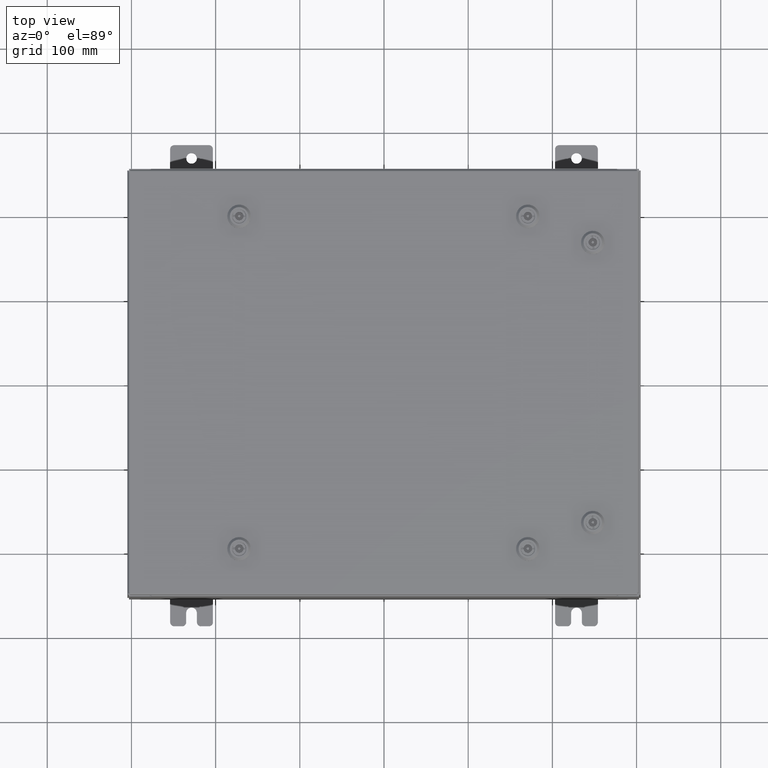
[diagram: clean part render]
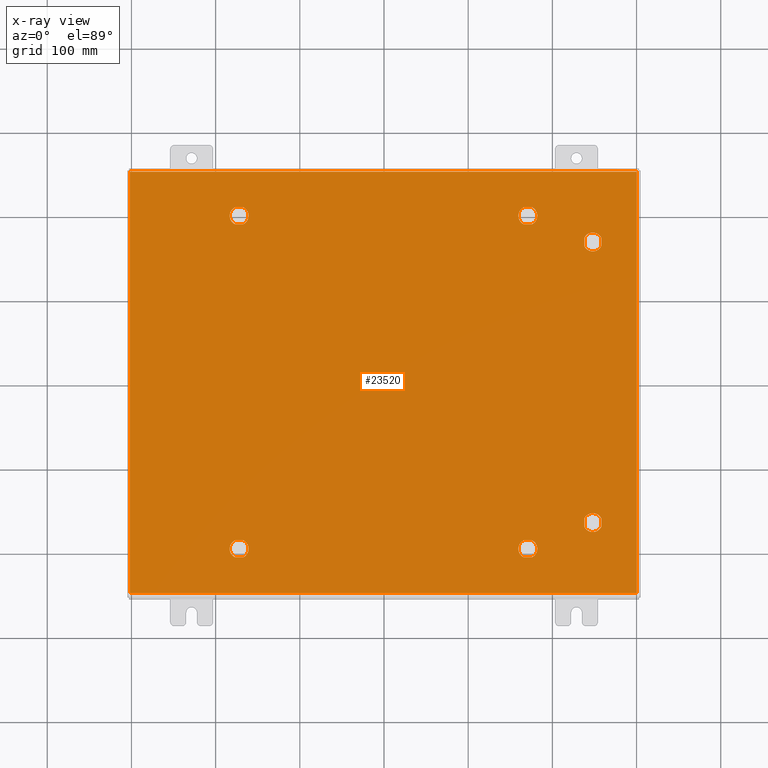
[diagram: x-ray — body ghosted, one internal face saturated and labeled with its STEP entity id]
A machine part, top view, then the same camera in x-ray: the body is ghosted and one INTERNAL B-rep face — a face not visible from any outside direction — is saturated and labeled: STEP entity #23520.
In plain terms, the highlighted planar face has unit normal (0, 0, -1).
Its self-contained STEP definition (entity closure, byte-faithful):
#188 = DIRECTION ( 'NONE',  ( 1.000000000000000000, -0.0000000000000000000, -0.0000000000000000000 ) ) ;
#236 = ORIENTED_EDGE ( 'NONE', *, *, #1452, .T. ) ;
#302 = DIRECTION ( 'NONE',  ( -1.000000000000000000, 1.369674334534794100E-014, 0.0000000000000000000 ) ) ;
#315 = VERTEX_POINT ( 'NONE', #58190 ) ;
#403 = ORIENTED_EDGE ( 'NONE', *, *, #55413, .T. ) ;
#440 = VERTEX_POINT ( 'NONE', #53066 ) ;
#461 = DIRECTION ( 'NONE',  ( -1.000000000000000000, -1.369674334534794100E-014, 0.0000000000000000000 ) ) ;
#861 = VECTOR ( 'NONE', #20509, 39.37007874015748100 ) ;
#1179 = VERTEX_POINT ( 'NONE', #11895 ) ;
#1356 = DIRECTION ( 'NONE',  ( -1.000000000000000000, 0.0000000000000000000, 0.0000000000000000000 ) ) ;
#1452 = EDGE_CURVE ( 'NONE', #16589, #52837, #58532, .T. ) ;
#1683 = FACE_BOUND ( 'NONE', #9829, .T. ) ;
#1711 = DIRECTION ( 'NONE',  ( -1.000000000000000000, -2.469467112916857400E-015, 0.0000000000000000000 ) ) ;
#2062 = DIRECTION ( 'NONE',  ( -0.0000000000000000000, -0.0000000000000000000, 1.000000000000000000 ) ) ;
#2112 = ORIENTED_EDGE ( 'NONE', *, *, #35524, .T. ) ;
#2425 = LINE ( 'NONE', #49826, #861 ) ;
#2474 = AXIS2_PLACEMENT_3D ( 'NONE', #43763, #14425, #48694 ) ;
#2481 = VERTEX_POINT ( 'NONE', #32948 ) ;
#2507 = DIRECTION ( 'NONE',  ( -0.0000000000000000000, -0.0000000000000000000, 1.000000000000000000 ) ) ;
#3019 = DIRECTION ( 'NONE',  ( -0.0000000000000000000, -0.0000000000000000000, 1.000000000000000000 ) ) ;
#3029 = VERTEX_POINT ( 'NONE', #52406 ) ;
#3538 = AXIS2_PLACEMENT_3D ( 'NONE', #49759, #20451, #54675 ) ;
#3946 = CARTESIAN_POINT ( 'NONE',  ( 11.84980000000000200, 9.849800000000000100, -0.07470000000000019700 ) ) ;
#3997 = DIRECTION ( 'NONE',  ( 5.478697338139235800E-015, 1.000000000000000000, 0.0000000000000000000 ) ) ;
#4159 = CARTESIAN_POINT ( 'NONE',  ( 9.787800000000007800, -6.562500000000012400, -0.07470000000000003000 ) ) ;
#4162 = AXIS2_PLACEMENT_3D ( 'NONE', #31438, #2062, #36368 ) ;
#4393 = DIRECTION ( 'NONE',  ( -0.0000000000000000000, -0.0000000000000000000, 1.000000000000000000 ) ) ;
#4891 = LINE ( 'NONE', #24973, #55456 ) ;
#5065 = VERTEX_POINT ( 'NONE', #7470 ) ;
#5237 = AXIS2_PLACEMENT_3D ( 'NONE', #4159, #38460, #9095 ) ;
#5354 = CARTESIAN_POINT ( 'NONE',  ( -6.307499999999987700, 7.787799999999991800, -0.07470000000000003000 ) ) ;
#5663 = CARTESIAN_POINT ( 'NONE',  ( 6.550547624732099700, -7.392799999999996700, -0.07470000000000003000 ) ) ;
#5948 = DIRECTION ( 'NONE',  ( 1.095739467627835200E-014, -1.000000000000000000, 0.0000000000000000000 ) ) ;
#6606 = VERTEX_POINT ( 'NONE', #37421 ) ;
#7470 = CARTESIAN_POINT ( 'NONE',  ( 9.392800000000011800, -6.363047624732129900, -0.07470000000000003000 ) ) ;
#8001 = VERTEX_POINT ( 'NONE', #41672 ) ;
#8590 = LINE ( 'NONE', #39434, #31587 ) ;
#8718 = DIRECTION ( 'NONE',  ( -0.0000000000000000000, -0.0000000000000000000, 1.000000000000000000 ) ) ;
#8778 = VECTOR ( 'NONE', #30366, 39.37007874015748100 ) ;
#8901 = DIRECTION ( 'NONE',  ( -1.000000000000000000, -0.0000000000000000000, -0.0000000000000000000 ) ) ;
#9018 = ORIENTED_EDGE ( 'NONE', *, *, #32318, .T. ) ;
#9021 = CARTESIAN_POINT ( 'NONE',  ( -6.949452375267869200, 7.392799999999994000, -0.07470000000000003000 ) ) ;
#9062 = CIRCLE ( 'NONE', #16989, 0.4424999999999972800 ) ;
#9095 = DIRECTION ( 'NONE',  ( -1.000000000000000000, 0.0000000000000000000, 0.0000000000000000000 ) ) ;
#9763 = ORIENTED_EDGE ( 'NONE', *, *, #19192, .T. ) ;
#9779 = EDGE_CURVE ( 'NONE', #18601, #5065, #11849, .T. ) ;
#9829 = EDGE_LOOP ( 'NONE', ( #54475, #43621, #48997, #42609 ) ) ;
#9909 = AXIS2_PLACEMENT_3D ( 'NONE', #47888, #18588, #52815 ) ;
#9981 = CARTESIAN_POINT ( 'NONE',  ( 6.550547624732091700, -8.182799999999984300, -0.07470000000000003000 ) ) ;
#10151 = EDGE_CURVE ( 'NONE', #10806, #54029, #15672, .T. ) ;
#10362 = CARTESIAN_POINT ( 'NONE',  ( 6.550547624732099700, 7.392799999999996700, -0.07470000000000003000 ) ) ;
#10489 = DIRECTION ( 'NONE',  ( 1.000000000000000000, 2.739348669069610000E-015, 0.0000000000000000000 ) ) ;
#10696 = CARTESIAN_POINT ( 'NONE',  ( -6.550547624732099700, -7.392799999999997600, -0.07470000000000003000 ) ) ;
#10806 = VERTEX_POINT ( 'NONE', #10362 ) ;
#11228 = EDGE_CURVE ( 'NONE', #55780, #63391, #17162, .T. ) ;
#11375 = VERTEX_POINT ( 'NONE', #62574 ) ;
#11455 = ORIENTED_EDGE ( 'NONE', *, *, #41051, .T. ) ;
#11512 = AXIS2_PLACEMENT_3D ( 'NONE', #31891, #2507, #36816 ) ;
#11808 = LINE ( 'NONE', #44244, #47802 ) ;
#11849 = CIRCLE ( 'NONE', #3538, 0.4424999999999983400 ) ;
#11895 = CARTESIAN_POINT ( 'NONE',  ( 11.84980000000000000, -9.849800000000000100, -0.07470000000000000300 ) ) ;
#12271 = ORIENTED_EDGE ( 'NONE', *, *, #39023, .T. ) ;
#12329 = VERTEX_POINT ( 'NONE', #9981 ) ;
#12970 = CIRCLE ( 'NONE', #2474, 0.4424999999999972800 ) ;
#12999 = EDGE_CURVE ( 'NONE', #31586, #1179, #8590, .T. ) ;
#13650 = CIRCLE ( 'NONE', #18124, 0.4424999999999983400 ) ;
#13819 = CARTESIAN_POINT ( 'NONE',  ( 9.392800000000015400, 6.761952375267902900, -0.07470000000000003000 ) ) ;
#14425 = DIRECTION ( 'NONE',  ( -0.0000000000000000000, -0.0000000000000000000, 1.000000000000000000 ) ) ;
#14902 = DIRECTION ( 'NONE',  ( 0.0000000000000000000, 1.000000000000000000, 0.0000000000000000000 ) ) ;
#14911 = LINE ( 'NONE', #54761, #8778 ) ;
#15006 = VERTEX_POINT ( 'NONE', #27516 ) ;
#15320 = CARTESIAN_POINT ( 'NONE',  ( 6.749999999999983100, -7.787799999999992700, -0.07470000000000003000 ) ) ;
#15350 = AXIS2_PLACEMENT_3D ( 'NONE', #52969, #23684, #57897 ) ;
#15672 = LINE ( 'NONE', #42883, #53196 ) ;
#15817 = EDGE_LOOP ( 'NONE', ( #11455, #19568, #35857, #36823, #53523 ) ) ;
#16257 = CARTESIAN_POINT ( 'NONE',  ( 10.18280000000000600, 6.363047624732129900, -0.07470000000000003000 ) ) ;
#16289 = EDGE_LOOP ( 'NONE', ( #9018, #31976, #24036, #40728, #48394 ) ) ;
#16589 = VERTEX_POINT ( 'NONE', #13819 ) ;
#16689 = EDGE_CURVE ( 'NONE', #440, #10806, #12970, .T. ) ;
#16989 = AXIS2_PLACEMENT_3D ( 'NONE', #60072, #30738, #1356 ) ;
#17162 = CIRCLE ( 'NONE', #32702, 0.4424999999999972800 ) ;
#17326 = ORIENTED_EDGE ( 'NONE', *, *, #41768, .T. ) ;
#17543 = CARTESIAN_POINT ( 'NONE',  ( 9.392800000000011800, 6.363047624732129900, -0.07470000000000003000 ) ) ;
#18124 = AXIS2_PLACEMENT_3D ( 'NONE', #33739, #4393, #38697 ) ;
#18170 = EDGE_CURVE ( 'NONE', #52837, #31588, #45034, .T. ) ;
#18502 = DIRECTION ( 'NONE',  ( 1.000000000000000000, -2.739348669069625400E-015, 0.0000000000000000000 ) ) ;
#18588 = DIRECTION ( 'NONE',  ( -0.0000000000000000000, -0.0000000000000000000, 1.000000000000000000 ) ) ;
#18601 = VERTEX_POINT ( 'NONE', #24805 ) ;
#18654 = EDGE_CURVE ( 'NONE', #11375, #8001, #47280, .T. ) ;
#18778 = CIRCLE ( 'NONE', #23100, 0.4424999999999972800 ) ;
#19027 = CARTESIAN_POINT ( 'NONE',  ( -6.949452375267869200, -7.392799999999996700, -0.07470000000000003000 ) ) ;
#19192 = EDGE_CURVE ( 'NONE', #27267, #16589, #54922, .T. ) ;
#19388 = AXIS2_PLACEMENT_3D ( 'NONE', #15320, #49588, #20288 ) ;
#19486 = EDGE_CURVE ( 'NONE', #1179, #24596, #54074, .T. ) ;
#19495 = CIRCLE ( 'NONE', #61235, 0.4424999999999983400 ) ;
#19568 = ORIENTED_EDGE ( 'NONE', *, *, #49556, .T. ) ;
#19914 = VECTOR ( 'NONE', #26200, 39.37007874015748100 ) ;
#20288 = DIRECTION ( 'NONE',  ( -1.000000000000000000, 0.0000000000000000000, 0.0000000000000000000 ) ) ;
#20451 = DIRECTION ( 'NONE',  ( -0.0000000000000000000, -0.0000000000000000000, 1.000000000000000000 ) ) ;
#20502 = VERTEX_POINT ( 'NONE', #45036 ) ;
#20509 = DIRECTION ( 'NONE',  ( 1.000000000000000000, -1.369674334534794100E-014, 0.0000000000000000000 ) ) ;
#20738 = PLANE ( 'NONE',  #27735 ) ;
#21068 = VERTEX_POINT ( 'NONE', #10696 ) ;
#21077 = VERTEX_POINT ( 'NONE', #44962 ) ;
#21155 = EDGE_LOOP ( 'NONE', ( #26827, #56444, #58296, #57636 ) ) ;
#21513 = EDGE_LOOP ( 'NONE', ( #23062, #2112, #9763, #236 ) ) ;
#21836 = EDGE_CURVE ( 'NONE', #20502, #21077, #11808, .T. ) ;
#21855 = CIRCLE ( 'NONE', #9909, 0.4424999999999972800 ) ;
#22592 = CIRCLE ( 'NONE', #5237, 0.4424999999999972800 ) ;
#23062 = ORIENTED_EDGE ( 'NONE', *, *, #18170, .T. ) ;
#23100 = AXIS2_PLACEMENT_3D ( 'NONE', #53030, #23731, #57949 ) ;
#23520 = ADVANCED_FACE ( 'NONE', ( #1683, #27794, #39283, #50768, #52295, #37759, #24755 ), #20738, .T. ) ;
#23684 = DIRECTION ( 'NONE',  ( -0.0000000000000000000, -0.0000000000000000000, 1.000000000000000000 ) ) ;
#23731 = DIRECTION ( 'NONE',  ( -0.0000000000000000000, -0.0000000000000000000, 1.000000000000000000 ) ) ;
#24036 = ORIENTED_EDGE ( 'NONE', *, *, #36273, .T. ) ;
#24300 = EDGE_CURVE ( 'NONE', #27539, #55780, #29270, .T. ) ;
#24438 = CARTESIAN_POINT ( 'NONE',  ( -6.749999999999984900, 7.787799999999991800, -0.07470000000000003000 ) ) ;
#24596 = VERTEX_POINT ( 'NONE', #60957 ) ;
#24755 = FACE_OUTER_BOUND ( 'NONE', #21155, .T. ) ;
#24805 = CARTESIAN_POINT ( 'NONE',  ( 10.18280000000000700, -6.363047624732129900, -0.07470000000000003000 ) ) ;
#24827 = VECTOR ( 'NONE', #61411, 39.37007874015748100 ) ;
#24973 = CARTESIAN_POINT ( 'NONE',  ( 6.550547624732091700, 8.182799999999984300, -0.07470000000000003000 ) ) ;
#25458 = ORIENTED_EDGE ( 'NONE', *, *, #42217, .T. ) ;
#25538 = AXIS2_PLACEMENT_3D ( 'NONE', #24438, #58661, #29342 ) ;
#25649 = DIRECTION ( 'NONE',  ( -0.0000000000000000000, -0.0000000000000000000, 1.000000000000000000 ) ) ;
#25677 = DIRECTION ( 'NONE',  ( -1.000000000000000000, 0.0000000000000000000, -0.0000000000000000000 ) ) ;
#26200 = DIRECTION ( 'NONE',  ( 0.0000000000000000000, -1.000000000000000000, 0.0000000000000000000 ) ) ;
#26360 = LINE ( 'NONE', #56476, #24827 ) ;
#26827 = ORIENTED_EDGE ( 'NONE', *, *, #19486, .F. ) ;
#27267 = VERTEX_POINT ( 'NONE', #37682 ) ;
#27516 = CARTESIAN_POINT ( 'NONE',  ( 6.949452375267864700, 8.182799999999989600, -0.07470000000000003000 ) ) ;
#27539 = VERTEX_POINT ( 'NONE', #49847 ) ;
#27540 = EDGE_CURVE ( 'NONE', #5065, #40271, #49867, .T. ) ;
#27735 = AXIS2_PLACEMENT_3D ( 'NONE', #40012, #54976, #25677 ) ;
#27794 = FACE_BOUND ( 'NONE', #21513, .T. ) ;
#28664 = VECTOR ( 'NONE', #10489, 39.37007874015748100 ) ;
#29270 = LINE ( 'NONE', #32117, #32328 ) ;
#29342 = DIRECTION ( 'NONE',  ( -1.000000000000000000, 0.0000000000000000000, 0.0000000000000000000 ) ) ;
#30366 = DIRECTION ( 'NONE',  ( -5.478697338139235800E-015, 1.000000000000000000, 0.0000000000000000000 ) ) ;
#30372 = CARTESIAN_POINT ( 'NONE',  ( 9.392800000000017100, -6.761952375267902900, -0.07470000000000003000 ) ) ;
#30428 = CARTESIAN_POINT ( 'NONE',  ( -6.550547624732093500, -8.182799999999986100, -0.07470000000000000300 ) ) ;
#30738 = DIRECTION ( 'NONE',  ( -0.0000000000000000000, -0.0000000000000000000, 1.000000000000000000 ) ) ;
#30827 = EDGE_CURVE ( 'NONE', #315, #60245, #9062, .T. ) ;
#31118 = DIRECTION ( 'NONE',  ( -0.0000000000000000000, -0.0000000000000000000, 1.000000000000000000 ) ) ;
#31438 = CARTESIAN_POINT ( 'NONE',  ( 9.787800000000007800, 6.562500000000012400, -0.07470000000000003000 ) ) ;
#31586 = VERTEX_POINT ( 'NONE', #50705 ) ;
#31587 = VECTOR ( 'NONE', #188, 39.37007874015748100 ) ;
#31588 = VERTEX_POINT ( 'NONE', #16257 ) ;
#31891 = CARTESIAN_POINT ( 'NONE',  ( 6.749999999999983100, -7.787799999999992700, -0.07470000000000003000 ) ) ;
#31976 = ORIENTED_EDGE ( 'NONE', *, *, #51795, .T. ) ;
#32117 = CARTESIAN_POINT ( 'NONE',  ( -6.550547624732093500, -8.182799999999986100, -0.07470000000000003000 ) ) ;
#32318 = EDGE_CURVE ( 'NONE', #54029, #42752, #48801, .T. ) ;
#32328 = VECTOR ( 'NONE', #46678, 39.37007874015748100 ) ;
#32384 = CARTESIAN_POINT ( 'NONE',  ( -6.749999999999984900, -7.787799999999993600, -0.07470000000000003000 ) ) ;
#32702 = AXIS2_PLACEMENT_3D ( 'NONE', #32384, #3019, #37328 ) ;
#32948 = CARTESIAN_POINT ( 'NONE',  ( 6.550547624732099700, -7.392799999999996700, -0.07470000000000000300 ) ) ;
#33020 = VERTEX_POINT ( 'NONE', #9021 ) ;
#33296 = ORIENTED_EDGE ( 'NONE', *, *, #61910, .T. ) ;
#33483 = CARTESIAN_POINT ( 'NONE',  ( 9.392800000000015400, 6.761952375267902900, -0.07470000000000003000 ) ) ;
#33699 = ORIENTED_EDGE ( 'NONE', *, *, #51943, .T. ) ;
#33739 = CARTESIAN_POINT ( 'NONE',  ( -6.749999999999984900, -7.787799999999993600, -0.07470000000000003000 ) ) ;
#35524 = EDGE_CURVE ( 'NONE', #31588, #27267, #14911, .T. ) ;
#35652 = CIRCLE ( 'NONE', #25538, 0.4424999999999983400 ) ;
#35857 = ORIENTED_EDGE ( 'NONE', *, *, #30827, .T. ) ;
#36037 = EDGE_CURVE ( 'NONE', #24596, #3029, #37133, .T. ) ;
#36067 = EDGE_CURVE ( 'NONE', #40271, #6606, #22592, .T. ) ;
#36273 = EDGE_CURVE ( 'NONE', #15006, #440, #4891, .T. ) ;
#36368 = DIRECTION ( 'NONE',  ( -1.000000000000000000, 0.0000000000000000000, 0.0000000000000000000 ) ) ;
#36816 = DIRECTION ( 'NONE',  ( -1.000000000000000000, 0.0000000000000000000, 0.0000000000000000000 ) ) ;
#36823 = ORIENTED_EDGE ( 'NONE', *, *, #41721, .T. ) ;
#37133 = LINE ( 'NONE', #3946, #48581 ) ;
#37328 = DIRECTION ( 'NONE',  ( -1.000000000000000000, 0.0000000000000000000, 0.0000000000000000000 ) ) ;
#37421 = CARTESIAN_POINT ( 'NONE',  ( 10.18280000000000600, -6.761952375267898500, -0.07470000000000003000 ) ) ;
#37621 = AXIS2_PLACEMENT_3D ( 'NONE', #60431, #31118, #1711 ) ;
#37682 = CARTESIAN_POINT ( 'NONE',  ( 10.18280000000000200, 6.761952375267898500, -0.07470000000000000300 ) ) ;
#37759 = FACE_BOUND ( 'NONE', #15817, .T. ) ;
#37761 = EDGE_CURVE ( 'NONE', #6606, #18601, #63053, .T. ) ;
#38075 = CARTESIAN_POINT ( 'NONE',  ( 9.787800000000007800, 6.562500000000012400, -0.07470000000000003000 ) ) ;
#38460 = DIRECTION ( 'NONE',  ( -0.0000000000000000000, -0.0000000000000000000, 1.000000000000000000 ) ) ;
#38697 = DIRECTION ( 'NONE',  ( -1.000000000000000000, 0.0000000000000000000, 0.0000000000000000000 ) ) ;
#39023 = EDGE_CURVE ( 'NONE', #8001, #2481, #53744, .T. ) ;
#39125 = ORIENTED_EDGE ( 'NONE', *, *, #62082, .T. ) ;
#39283 = FACE_BOUND ( 'NONE', #45558, .T. ) ;
#39434 = CARTESIAN_POINT ( 'NONE',  ( -11.84979999999999100, -9.849800000000001900, -0.07469999999999914200 ) ) ;
#39533 = VECTOR ( 'NONE', #14902, 39.37007874015748100 ) ;
#40012 = CARTESIAN_POINT ( 'NONE',  ( 0.0000000000000000000, 0.0000000000000000000, -0.07470000000000000300 ) ) ;
#40170 = LINE ( 'NONE', #44754, #28664 ) ;
#40271 = VERTEX_POINT ( 'NONE', #46890 ) ;
#40728 = ORIENTED_EDGE ( 'NONE', *, *, #16689, .T. ) ;
#40907 = DIRECTION ( 'NONE',  ( -8.218046007208762600E-015, -1.000000000000000000, 0.0000000000000000000 ) ) ;
#41051 = EDGE_CURVE ( 'NONE', #21077, #33020, #35652, .T. ) ;
#41672 = CARTESIAN_POINT ( 'NONE',  ( 6.949452375267867400, -7.392799999999995800, -0.07470000000000003000 ) ) ;
#41721 = EDGE_CURVE ( 'NONE', #60245, #20502, #21855, .T. ) ;
#41768 = EDGE_CURVE ( 'NONE', #63391, #21068, #18778, .T. ) ;
#42217 = EDGE_CURVE ( 'NONE', #59035, #11375, #19495, .T. ) ;
#42609 = ORIENTED_EDGE ( 'NONE', *, *, #37761, .T. ) ;
#42752 = VERTEX_POINT ( 'NONE', #48585 ) ;
#42883 = CARTESIAN_POINT ( 'NONE',  ( 6.550547624732099700, 7.392799999999996700, -0.07470000000000003000 ) ) ;
#42977 = DIRECTION ( 'NONE',  ( -1.000000000000000000, 0.0000000000000000000, 0.0000000000000000000 ) ) ;
#43621 = ORIENTED_EDGE ( 'NONE', *, *, #27540, .T. ) ;
#43763 = CARTESIAN_POINT ( 'NONE',  ( 6.749999999999983100, 7.787799999999992700, -0.07470000000000003000 ) ) ;
#44244 = CARTESIAN_POINT ( 'NONE',  ( -6.550547624732093500, 8.182799999999984300, -0.07470000000000003000 ) ) ;
#44754 = CARTESIAN_POINT ( 'NONE',  ( -6.550547624732099700, 7.392799999999995800, -0.07470000000000003000 ) ) ;
#44962 = CARTESIAN_POINT ( 'NONE',  ( -6.949452375267865600, 8.182799999999989600, -0.07470000000000003000 ) ) ;
#45034 = CIRCLE ( 'NONE', #4162, 0.4424999999999972800 ) ;
#45036 = CARTESIAN_POINT ( 'NONE',  ( -6.550547624732093500, 8.182799999999984300, -0.07470000000000003000 ) ) ;
#45491 = VECTOR ( 'NONE', #40907, 39.37007874015748100 ) ;
#45558 = EDGE_LOOP ( 'NONE', ( #25458, #56340, #12271, #33296, #403 ) ) ;
#46678 = DIRECTION ( 'NONE',  ( 1.000000000000000000, 1.369674334534794100E-014, 0.0000000000000000000 ) ) ;
#46890 = CARTESIAN_POINT ( 'NONE',  ( 9.392800000000017100, -6.761952375267902900, -0.07470000000000000300 ) ) ;
#47280 = CIRCLE ( 'NONE', #19388, 0.4424999999999983400 ) ;
#47802 = VECTOR ( 'NONE', #302, 39.37007874015748100 ) ;
#47888 = CARTESIAN_POINT ( 'NONE',  ( -6.749999999999984900, 7.787799999999991800, -0.07470000000000003000 ) ) ;
#48394 = ORIENTED_EDGE ( 'NONE', *, *, #10151, .T. ) ;
#48581 = VECTOR ( 'NONE', #8901, 39.37007874015748100 ) ;
#48585 = CARTESIAN_POINT ( 'NONE',  ( 7.192499999999982100, 7.787799999999992700, -0.07470000000000003000 ) ) ;
#48694 = DIRECTION ( 'NONE',  ( -1.000000000000000000, 0.0000000000000000000, 0.0000000000000000000 ) ) ;
#48801 = CIRCLE ( 'NONE', #15350, 0.4424999999999983400 ) ;
#48997 = ORIENTED_EDGE ( 'NONE', *, *, #36067, .T. ) ;
#49375 = CARTESIAN_POINT ( 'NONE',  ( 11.84980000000000000, -9.849800000000000100, -0.07470000000000019700 ) ) ;
#49556 = EDGE_CURVE ( 'NONE', #33020, #315, #40170, .T. ) ;
#49588 = DIRECTION ( 'NONE',  ( -0.0000000000000000000, -0.0000000000000000000, 1.000000000000000000 ) ) ;
#49759 = CARTESIAN_POINT ( 'NONE',  ( 9.787800000000007800, -6.562500000000012400, -0.07470000000000003000 ) ) ;
#49826 = CARTESIAN_POINT ( 'NONE',  ( 6.550547624732091700, -8.182799999999984300, -0.07470000000000003000 ) ) ;
#49847 = CARTESIAN_POINT ( 'NONE',  ( -6.949452375267865600, -8.182799999999991400, -0.07470000000000003000 ) ) ;
#49867 = LINE ( 'NONE', #30372, #61357 ) ;
#50028 = VECTOR ( 'NONE', #3997, 39.37007874015748100 ) ;
#50705 = CARTESIAN_POINT ( 'NONE',  ( -11.84979999999999500, -9.849800000000001900, -0.07470000000000000300 ) ) ;
#50768 = FACE_BOUND ( 'NONE', #61764, .T. ) ;
#51795 = EDGE_CURVE ( 'NONE', #42752, #15006, #53897, .T. ) ;
#51943 = EDGE_CURVE ( 'NONE', #21068, #55279, #26360, .T. ) ;
#52222 = VECTOR ( 'NONE', #54684, 39.37007874015748100 ) ;
#52295 = FACE_BOUND ( 'NONE', #16289, .T. ) ;
#52337 = CARTESIAN_POINT ( 'NONE',  ( 6.949452375267867400, 7.392799999999995800, -0.07470000000000003000 ) ) ;
#52406 = CARTESIAN_POINT ( 'NONE',  ( -11.84979999999999800, 9.849800000000000100, -0.07470000000000000300 ) ) ;
#52815 = DIRECTION ( 'NONE',  ( -1.000000000000000000, 0.0000000000000000000, 0.0000000000000000000 ) ) ;
#52837 = VERTEX_POINT ( 'NONE', #17543 ) ;
#52969 = CARTESIAN_POINT ( 'NONE',  ( 6.749999999999983100, 7.787799999999992700, -0.07470000000000003000 ) ) ;
#53030 = CARTESIAN_POINT ( 'NONE',  ( -6.749999999999984900, -7.787799999999993600, -0.07470000000000003000 ) ) ;
#53066 = CARTESIAN_POINT ( 'NONE',  ( 6.550547624732091700, 8.182799999999984300, -0.07470000000000000300 ) ) ;
#53196 = VECTOR ( 'NONE', #18502, 39.37007874015748100 ) ;
#53523 = ORIENTED_EDGE ( 'NONE', *, *, #21836, .T. ) ;
#53744 = LINE ( 'NONE', #5663, #52222 ) ;
#53897 = CIRCLE ( 'NONE', #37621, 0.4424999999999983400 ) ;
#54029 = VERTEX_POINT ( 'NONE', #52337 ) ;
#54074 = LINE ( 'NONE', #49375, #39533 ) ;
#54256 = AXIS2_PLACEMENT_3D ( 'NONE', #38075, #8718, #42977 ) ;
#54475 = ORIENTED_EDGE ( 'NONE', *, *, #9779, .T. ) ;
#54675 = DIRECTION ( 'NONE',  ( -1.000000000000000000, -2.469467112916857400E-015, 0.0000000000000000000 ) ) ;
#54684 = DIRECTION ( 'NONE',  ( -1.000000000000000000, -2.739348669069625400E-015, 0.0000000000000000000 ) ) ;
#54761 = CARTESIAN_POINT ( 'NONE',  ( 10.18280000000000200, 6.761952375267898500, -0.07470000000000003000 ) ) ;
#54922 = CIRCLE ( 'NONE', #54256, 0.4424999999999972800 ) ;
#54946 = CARTESIAN_POINT ( 'NONE',  ( 6.749999999999983100, -7.787799999999992700, -0.07470000000000003000 ) ) ;
#54976 = DIRECTION ( 'NONE',  ( 0.0000000000000000000, 0.0000000000000000000, -1.000000000000000000 ) ) ;
#55279 = VERTEX_POINT ( 'NONE', #19027 ) ;
#55413 = EDGE_CURVE ( 'NONE', #12329, #59035, #2425, .T. ) ;
#55456 = VECTOR ( 'NONE', #461, 39.37007874015748100 ) ;
#55780 = VERTEX_POINT ( 'NONE', #30428 ) ;
#55853 = ORIENTED_EDGE ( 'NONE', *, *, #24300, .T. ) ;
#56340 = ORIENTED_EDGE ( 'NONE', *, *, #18654, .T. ) ;
#56444 = ORIENTED_EDGE ( 'NONE', *, *, #12999, .F. ) ;
#56476 = CARTESIAN_POINT ( 'NONE',  ( -6.550547624732099700, -7.392799999999997600, -0.07470000000000003000 ) ) ;
#56691 = ORIENTED_EDGE ( 'NONE', *, *, #11228, .T. ) ;
#57636 = ORIENTED_EDGE ( 'NONE', *, *, #36037, .F. ) ;
#57753 = CARTESIAN_POINT ( 'NONE',  ( 10.18280000000000600, -6.761952375267898500, -0.07470000000000003000 ) ) ;
#57897 = DIRECTION ( 'NONE',  ( -1.000000000000000000, 2.469467112916857400E-015, 0.0000000000000000000 ) ) ;
#57949 = DIRECTION ( 'NONE',  ( -1.000000000000000000, 0.0000000000000000000, 0.0000000000000000000 ) ) ;
#58037 = EDGE_CURVE ( 'NONE', #3029, #31586, #63587, .T. ) ;
#58190 = CARTESIAN_POINT ( 'NONE',  ( -6.550547624732099700, 7.392799999999995800, -0.07470000000000000300 ) ) ;
#58296 = ORIENTED_EDGE ( 'NONE', *, *, #58037, .F. ) ;
#58532 = LINE ( 'NONE', #33483, #45491 ) ;
#58661 = DIRECTION ( 'NONE',  ( -0.0000000000000000000, -0.0000000000000000000, 1.000000000000000000 ) ) ;
#59035 = VERTEX_POINT ( 'NONE', #61723 ) ;
#59869 = DIRECTION ( 'NONE',  ( -1.000000000000000000, -4.938934225833714700E-015, 0.0000000000000000000 ) ) ;
#60072 = CARTESIAN_POINT ( 'NONE',  ( -6.749999999999984900, 7.787799999999991800, -0.07470000000000003000 ) ) ;
#60245 = VERTEX_POINT ( 'NONE', #5354 ) ;
#60408 = CIRCLE ( 'NONE', #11512, 0.4424999999999972800 ) ;
#60431 = CARTESIAN_POINT ( 'NONE',  ( 6.749999999999983100, 7.787799999999992700, -0.07470000000000003000 ) ) ;
#60435 = CARTESIAN_POINT ( 'NONE',  ( -11.84980000000000000, 9.849800000000001900, -0.07470000000000129300 ) ) ;
#60957 = CARTESIAN_POINT ( 'NONE',  ( 11.84980000000000000, 9.849800000000000100, -0.07470000000000000300 ) ) ;
#61235 = AXIS2_PLACEMENT_3D ( 'NONE', #54946, #25649, #59869 ) ;
#61357 = VECTOR ( 'NONE', #5948, 39.37007874015748100 ) ;
#61411 = DIRECTION ( 'NONE',  ( -1.000000000000000000, 2.739348669069610000E-015, 0.0000000000000000000 ) ) ;
#61723 = CARTESIAN_POINT ( 'NONE',  ( 6.949452375267864700, -8.182799999999989600, -0.07470000000000003000 ) ) ;
#61764 = EDGE_LOOP ( 'NONE', ( #39125, #55853, #56691, #17326, #33699 ) ) ;
#61910 = EDGE_CURVE ( 'NONE', #2481, #12329, #60408, .T. ) ;
#62082 = EDGE_CURVE ( 'NONE', #55279, #27539, #13650, .T. ) ;
#62574 = CARTESIAN_POINT ( 'NONE',  ( 7.192499999999982100, -7.787799999999992700, -0.07470000000000003000 ) ) ;
#63030 = CARTESIAN_POINT ( 'NONE',  ( -6.307499999999987700, -7.787799999999993600, -0.07470000000000003000 ) ) ;
#63053 = LINE ( 'NONE', #57753, #50028 ) ;
#63391 = VERTEX_POINT ( 'NONE', #63030 ) ;
#63587 = LINE ( 'NONE', #60435, #19914 ) ;